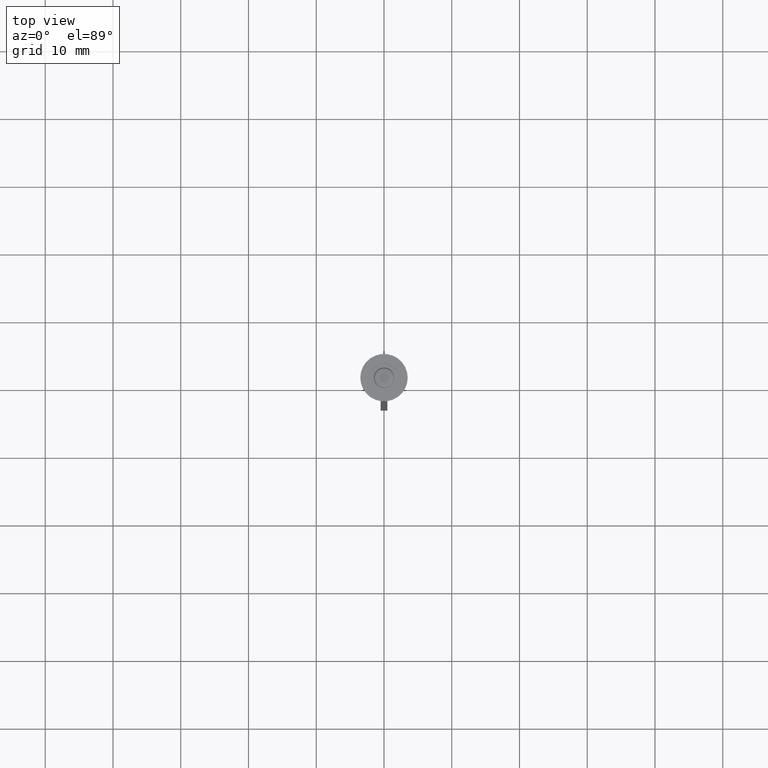
[diagram: clean part render]
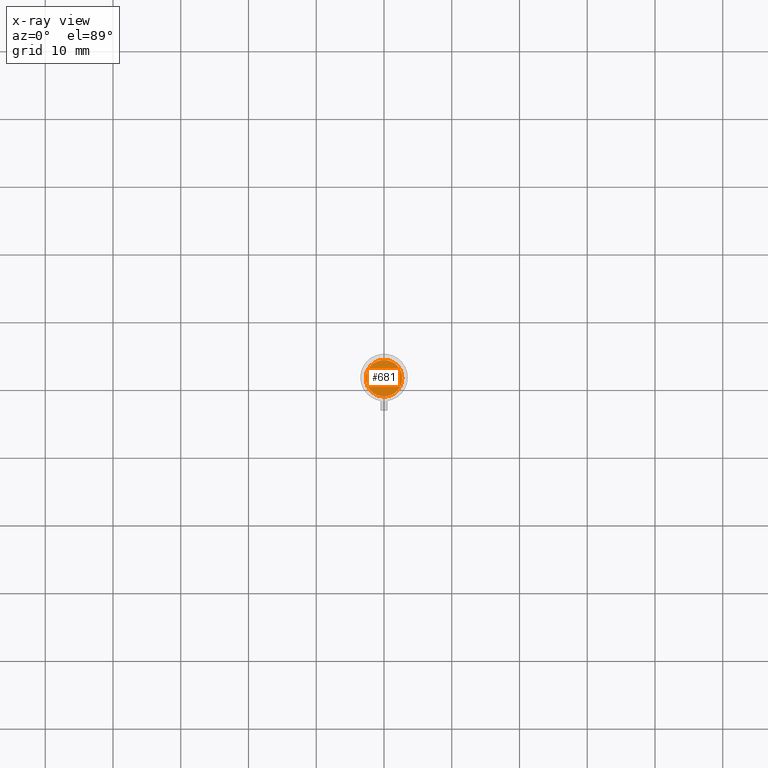
[diagram: x-ray — body ghosted, one internal face saturated and labeled with its STEP entity id]
A machine part, top view, then the same camera in x-ray: the body is ghosted and one INTERNAL B-rep face — a face not visible from any outside direction — is saturated and labeled: STEP entity #681.
In plain terms, the highlighted planar face has unit normal (0, 0, -1).
Its self-contained STEP definition (entity closure, byte-faithful):
#119 = CARTESIAN_POINT ( 'NONE',  ( 0.000000000000000000, 0.000000000000000000, -5.500000000000000000 ) ) ;
#178 = VERTEX_POINT ( 'NONE', #2220 ) ;
#297 = CARTESIAN_POINT ( 'NONE',  ( 0.000000000000000000, 0.000000000000000000, -5.500000000000000000 ) ) ;
#434 = CIRCLE ( 'NONE', #1262, 2.700000000000002398 ) ;
#575 = AXIS2_PLACEMENT_3D ( 'NONE', #119, #1767, #1583 ) ;
#635 = FACE_OUTER_BOUND ( 'NONE', #856, .T. ) ;
#681 = ADVANCED_FACE ( 'NONE', ( #635 ), #1912, .F. ) ;
#688 = ORIENTED_EDGE ( 'NONE', *, *, #2003, .T. ) ;
#774 = DIRECTION ( 'NONE',  ( -0.000000000000000000, -0.000000000000000000, 1.000000000000000000 ) ) ;
#856 = EDGE_LOOP ( 'NONE', ( #688, #1774 ) ) ;
#929 = VERTEX_POINT ( 'NONE', #1308 ) ;
#1262 = AXIS2_PLACEMENT_3D ( 'NONE', #2114, #774, #1841 ) ;
#1308 = CARTESIAN_POINT ( 'NONE',  ( 2.700000000000002398, 3.490243377569959512E-16, -5.500000000000000000 ) ) ;
#1321 = DIRECTION ( 'NONE',  ( -1.000000000000000000, 0.000000000000000000, -0.000000000000000000 ) ) ;
#1332 = DIRECTION ( 'NONE',  ( 0.000000000000000000, 0.000000000000000000, -1.000000000000000000 ) ) ;
#1583 = DIRECTION ( 'NONE',  ( -1.000000000000000000, 0.000000000000000000, 0.000000000000000000 ) ) ;
#1639 = CIRCLE ( 'NONE', #575, 2.700000000000002398 ) ;
#1674 = EDGE_CURVE ( 'NONE', #929, #178, #434, .T. ) ;
#1767 = DIRECTION ( 'NONE',  ( -0.000000000000000000, -0.000000000000000000, 1.000000000000000000 ) ) ;
#1774 = ORIENTED_EDGE ( 'NONE', *, *, #1674, .T. ) ;
#1841 = DIRECTION ( 'NONE',  ( -1.000000000000000000, 0.000000000000000000, 0.000000000000000000 ) ) ;
#1912 = PLANE ( 'NONE',  #1941 ) ;
#1941 = AXIS2_PLACEMENT_3D ( 'NONE', #297, #1332, #1321 ) ;
#2003 = EDGE_CURVE ( 'NONE', #178, #929, #1639, .T. ) ;
#2114 = CARTESIAN_POINT ( 'NONE',  ( 0.000000000000000000, 0.000000000000000000, -5.500000000000000000 ) ) ;
#2220 = CARTESIAN_POINT ( 'NONE',  ( -2.700000000000002398, 0.000000000000000000, -5.500000000000000000 ) ) ;